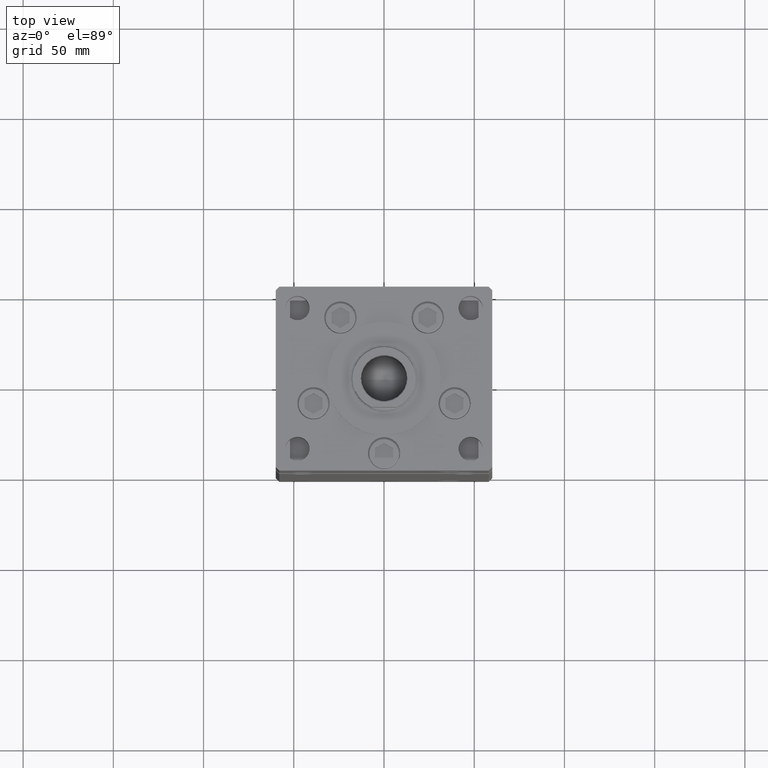
[diagram: clean part render]
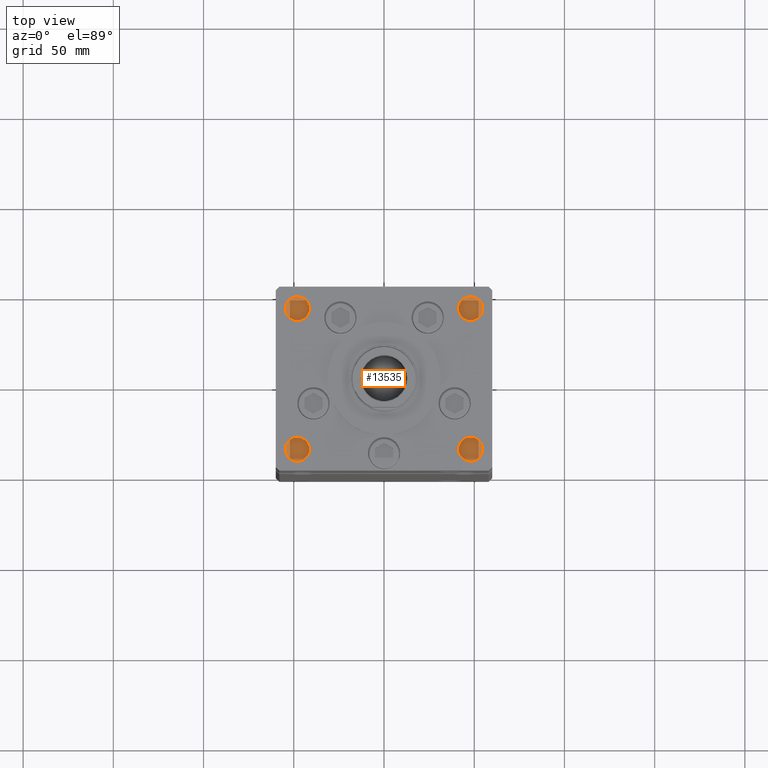
[diagram: same view with one face highlighted and labeled with its STEP entity id]
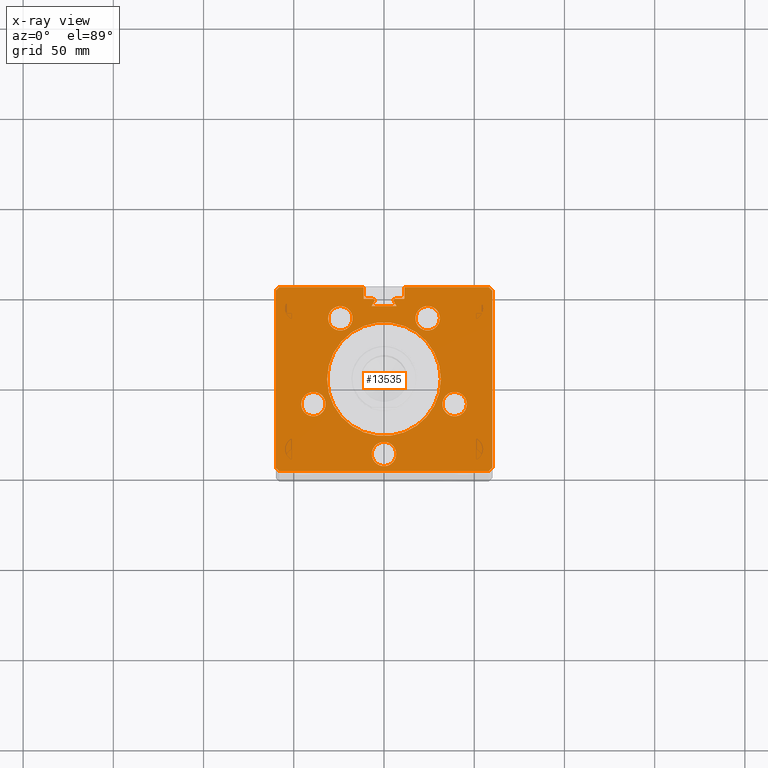
[diagram: x-ray of the same camera — body ghosted, the highlighted face saturated]
A machine part, top view. The second image highlights one B-rep face of the part: STEP entity #13535.
The next image is the same camera in x-ray: the body ghosted, the highlighted face saturated — about 0% of this face is hidden behind the body in this view.
In plain terms, the highlighted planar face has unit normal (0, 0, -1).
Its self-contained STEP definition (entity closure, byte-faithful):
#271 = CIRCLE ( 'NONE', #1985, 0.9333333333340008142 ) ;
#472 = DIRECTION ( 'NONE',  ( 0.000000000000000000, 0.000000000000000000, 1.000000000000000000 ) ) ;
#587 = DIRECTION ( 'NONE',  ( -1.000000000000000000, 0.000000000000000000, 0.000000000000000000 ) ) ;
#643 = CIRCLE ( 'NONE', #15227, 31.50000000000000000 ) ;
#818 = CARTESIAN_POINT ( 'NONE',  ( -24.19288941894912881, 33.71875000000000000, 318.5000000000000000 ) ) ;
#921 = VECTOR ( 'NONE', #47172, 1000.000000000000000 ) ;
#943 = EDGE_CURVE ( 'NONE', #37260, #21744, #26004, .T. ) ;
#968 = CARTESIAN_POINT ( 'NONE',  ( -57.99999999999999289, 51.00000000000000711, 318.5000000000000000 ) ) ;
#1206 = CIRCLE ( 'NONE', #27736, 6.749999999999999112 ) ;
#1499 = CARTESIAN_POINT ( 'NONE',  ( 2.541142108230757874E-15, -41.50000000000000000, 318.5000000000000000 ) ) ;
#1500 = DIRECTION ( 'NONE',  ( 0.000000000000000000, 0.000000000000000000, 1.000000000000000000 ) ) ;
#1764 = CARTESIAN_POINT ( 'NONE',  ( 0.000000000000000000, 40.49999999999987210, 318.5000000000000000 ) ) ;
#1843 = DIRECTION ( 'NONE',  ( 1.000000000000000000, 0.000000000000000000, 0.000000000000000000 ) ) ;
#1952 = CARTESIAN_POINT ( 'NONE',  ( 45.87657522565562829, -13.83333333333334103, 318.5000000000000000 ) ) ;
#1985 = AXIS2_PLACEMENT_3D ( 'NONE', #45870, #18233, #29802 ) ;
#2063 = DIRECTION ( 'NONE',  ( 0.000000000000000000, 0.000000000000000000, -1.000000000000000000 ) ) ;
#2273 = DIRECTION ( 'NONE',  ( -1.000000000000000000, 0.000000000000000000, 0.000000000000000000 ) ) ;
#2300 = CARTESIAN_POINT ( 'NONE',  ( -17.44288941894912881, 33.71875000000000000, 318.5000000000000000 ) ) ;
#2596 = DIRECTION ( 'NONE',  ( 1.000000000000000000, 0.000000000000000000, 0.000000000000000000 ) ) ;
#2852 = VERTEX_POINT ( 'NONE', #18834 ) ;
#2902 = AXIS2_PLACEMENT_3D ( 'NONE', #43939, #22776, #3468 ) ;
#3245 = DIRECTION ( 'NONE',  ( 0.000000000000000000, 0.000000000000000000, 1.000000000000000000 ) ) ;
#3468 = DIRECTION ( 'NONE',  ( 1.000000000000000000, 0.000000000000000000, 0.000000000000000000 ) ) ;
#3974 = DIRECTION ( 'NONE',  ( 1.000000000000000000, 0.000000000000000000, 0.000000000000000000 ) ) ;
#4089 = LINE ( 'NONE', #48314, #36379 ) ;
#4100 = CARTESIAN_POINT ( 'NONE',  ( 57.99999999999999289, 51.00000000000000711, 318.5000000000000000 ) ) ;
#4132 = CIRCLE ( 'NONE', #35786, 6.749999999999999112 ) ;
#4183 = ORIENTED_EDGE ( 'NONE', *, *, #19803, .F. ) ;
#4267 = VERTEX_POINT ( 'NONE', #39614 ) ;
#4610 = VERTEX_POINT ( 'NONE', #39232 ) ;
#4684 = VERTEX_POINT ( 'NONE', #16180 ) ;
#4783 = DIRECTION ( 'NONE',  ( -0.7071067811865474617, -0.7071067811865474617, 0.000000000000000000 ) ) ;
#4856 = VECTOR ( 'NONE', #2273, 1000.000000000000000 ) ;
#4899 = ORIENTED_EDGE ( 'NONE', *, *, #32314, .F. ) ;
#5139 = EDGE_CURVE ( 'NONE', #44314, #11537, #34294, .T. ) ;
#5377 = CARTESIAN_POINT ( 'NONE',  ( -45.87657522565562829, -13.83333333333334636, 318.5000000000000000 ) ) ;
#5430 = EDGE_CURVE ( 'NONE', #15953, #10829, #17365, .T. ) ;
#5529 = CIRCLE ( 'NONE', #32053, 0.9333333333340008142 ) ;
#5603 = DIRECTION ( 'NONE',  ( 0.000000000000000000, 0.000000000000000000, 1.000000000000000000 ) ) ;
#5671 = ORIENTED_EDGE ( 'NONE', *, *, #15762, .F. ) ;
#6312 = DIRECTION ( 'NONE',  ( 0.000000000000000000, 0.000000000000000000, 1.000000000000000000 ) ) ;
#6645 = CIRCLE ( 'NONE', #16056, 6.749999999999999112 ) ;
#7073 = CARTESIAN_POINT ( 'NONE',  ( 6.183333333333997928, 44.50000000000000711, 318.5000000000000000 ) ) ;
#7468 = EDGE_CURVE ( 'NONE', #18924, #43383, #39470, .T. ) ;
#8325 = DIRECTION ( 'NONE',  ( 1.000000000000000000, 0.000000000000000000, 0.000000000000000000 ) ) ;
#8912 = DIRECTION ( 'NONE',  ( 0.4999999999999985012, -0.8660254037844393737, 0.000000000000000000 ) ) ;
#8997 = CARTESIAN_POINT ( 'NONE',  ( -32.37657522565562829, -13.83333333333334636, 318.5000000000000000 ) ) ;
#9118 = VERTEX_POINT ( 'NONE', #5377 ) ;
#9163 = PLANE ( 'NONE',  #14002 ) ;
#9293 = DIRECTION ( 'NONE',  ( 0.000000000000000000, 0.000000000000000000, 1.000000000000000000 ) ) ;
#9420 = CARTESIAN_POINT ( 'NONE',  ( 11.24999999999999822, 0.000000000000000000, 318.5000000000000000 ) ) ;
#9554 = EDGE_LOOP ( 'NONE', ( #22213, #12831 ) ) ;
#9953 = EDGE_LOOP ( 'NONE', ( #29011, #47248 ) ) ;
#10340 = DIRECTION ( 'NONE',  ( 1.000000000000000000, 0.000000000000000000, 0.000000000000000000 ) ) ;
#10678 = AXIS2_PLACEMENT_3D ( 'NONE', #39940, #3245, #30857 ) ;
#10829 = VERTEX_POINT ( 'NONE', #35380 ) ;
#10921 = CARTESIAN_POINT ( 'NONE',  ( -11.24999999999999822, 51.00000000000000711, 318.5000000000000000 ) ) ;
#11189 = ORIENTED_EDGE ( 'NONE', *, *, #34710, .T. ) ;
#11537 = VERTEX_POINT ( 'NONE', #11859 ) ;
#11586 = DIRECTION ( 'NONE',  ( 1.000000000000000000, 0.000000000000000000, 0.000000000000000000 ) ) ;
#11603 = LINE ( 'NONE', #23661, #46843 ) ;
#11613 = VECTOR ( 'NONE', #8912, 1000.000000000000114 ) ;
#11682 = EDGE_CURVE ( 'NONE', #23721, #22192, #271, .T. ) ;
#11859 = CARTESIAN_POINT ( 'NONE',  ( -59.99999999999998579, -48.99999999999998579, 318.5000000000000000 ) ) ;
#12122 = LINE ( 'NONE', #4100, #41546 ) ;
#12352 = CARTESIAN_POINT ( 'NONE',  ( 0.000000000000000000, 0.000000000000000000, 318.5000000000000000 ) ) ;
#12831 = ORIENTED_EDGE ( 'NONE', *, *, #52252, .F. ) ;
#12857 = ORIENTED_EDGE ( 'NONE', *, *, #34160, .T. ) ;
#12873 = DIRECTION ( 'NONE',  ( 0.000000000000000000, 0.000000000000000000, 1.000000000000000000 ) ) ;
#12978 = ORIENTED_EDGE ( 'NONE', *, *, #33985, .T. ) ;
#13307 = DIRECTION ( 'NONE',  ( -1.000000000000000000, 0.000000000000000000, 0.000000000000000000 ) ) ;
#13375 = ORIENTED_EDGE ( 'NONE', *, *, #33612, .T. ) ;
#13535 = ADVANCED_FACE ( 'NONE', ( #23140, #22077, #30302, #34322, #46645, #42358, #38071 ), #9163, .F. ) ;
#13612 = AXIS2_PLACEMENT_3D ( 'NONE', #25627, #1500, #10340 ) ;
#13976 = ORIENTED_EDGE ( 'NONE', *, *, #5430, .F. ) ;
#14002 = AXIS2_PLACEMENT_3D ( 'NONE', #25755, #22246, #46378 ) ;
#14159 = CARTESIAN_POINT ( 'NONE',  ( -39.12657522565562829, -13.83333333333334636, 318.5000000000000000 ) ) ;
#14409 = LINE ( 'NONE', #10921, #25119 ) ;
#15227 = AXIS2_PLACEMENT_3D ( 'NONE', #12352, #24679, #32984 ) ;
#15246 = ORIENTED_EDGE ( 'NONE', *, *, #42991, .F. ) ;
#15519 = EDGE_CURVE ( 'NONE', #9118, #20798, #45753, .T. ) ;
#15762 = EDGE_CURVE ( 'NONE', #40705, #15953, #18887, .T. ) ;
#15892 = DIRECTION ( 'NONE',  ( 0.7071067811865500152, -0.7071067811865451302, 0.000000000000000000 ) ) ;
#15953 = VERTEX_POINT ( 'NONE', #30837 ) ;
#16056 = AXIS2_PLACEMENT_3D ( 'NONE', #21939, #5603, #1843 ) ;
#16180 = CARTESIAN_POINT ( 'NONE',  ( 6.876153656360465050, 40.49999999999987210, 318.5000000000000000 ) ) ;
#16379 = AXIS2_PLACEMENT_3D ( 'NONE', #30701, #6312, #11586 ) ;
#16558 = CIRCLE ( 'NONE', #23398, 6.749999999999999112 ) ;
#16868 = ORIENTED_EDGE ( 'NONE', *, *, #42197, .T. ) ;
#17017 = DIRECTION ( 'NONE',  ( 0.000000000000000000, 0.000000000000000000, -1.000000000000000000 ) ) ;
#17162 = CARTESIAN_POINT ( 'NONE',  ( -60.00000000000001421, 49.00000000000000000, 318.5000000000000000 ) ) ;
#17288 = EDGE_CURVE ( 'NONE', #2852, #17461, #20947, .T. ) ;
#17365 = LINE ( 'NONE', #41480, #31754 ) ;
#17403 = VECTOR ( 'NONE', #32445, 1000.000000000000114 ) ;
#17461 = VERTEX_POINT ( 'NONE', #34987 ) ;
#17711 = EDGE_CURVE ( 'NONE', #4610, #4267, #4089, .T. ) ;
#17745 = LINE ( 'NONE', #34612, #20782 ) ;
#18164 = VERTEX_POINT ( 'NONE', #2300 ) ;
#18233 = DIRECTION ( 'NONE',  ( 0.000000000000000000, 0.000000000000000000, -1.000000000000000000 ) ) ;
#18358 = DIRECTION ( 'NONE',  ( 1.000000000000000000, 0.000000000000000000, 0.000000000000000000 ) ) ;
#18601 = EDGE_CURVE ( 'NONE', #50510, #40705, #12122, .T. ) ;
#18793 = CARTESIAN_POINT ( 'NONE',  ( 5.375042956467942723, 43.09999999999899956, 318.5000000000000000 ) ) ;
#18834 = CARTESIAN_POINT ( 'NONE',  ( -6.749999999999996447, -41.50000000000000000, 318.5000000000000000 ) ) ;
#18887 = LINE ( 'NONE', #27217, #41464 ) ;
#18924 = VERTEX_POINT ( 'NONE', #37575 ) ;
#19100 = AXIS2_PLACEMENT_3D ( 'NONE', #40433, #24634, #24894 ) ;
#19147 = EDGE_CURVE ( 'NONE', #18164, #33308, #31211, .T. ) ;
#19447 = LINE ( 'NONE', #44388, #43193 ) ;
#19803 = EDGE_CURVE ( 'NONE', #23061, #41253, #19447, .T. ) ;
#20095 = CARTESIAN_POINT ( 'NONE',  ( -22.69412966890515193, 13.10246187336661094, 318.5000000000000000 ) ) ;
#20106 = AXIS2_PLACEMENT_3D ( 'NONE', #1499, #9293, #18358 ) ;
#20782 = VECTOR ( 'NONE', #42393, 1000.000000000000000 ) ;
#20798 = VERTEX_POINT ( 'NONE', #8997 ) ;
#20947 = CIRCLE ( 'NONE', #20106, 6.749999999999999112 ) ;
#21235 = LINE ( 'NONE', #49668, #26922 ) ;
#21282 = DIRECTION ( 'NONE',  ( 1.000000000000000000, 0.000000000000000000, 0.000000000000000000 ) ) ;
#21289 = CIRCLE ( 'NONE', #13612, 6.749999999999999112 ) ;
#21744 = VERTEX_POINT ( 'NONE', #30030 ) ;
#21939 = CARTESIAN_POINT ( 'NONE',  ( -39.12657522565562829, -13.83333333333334636, 318.5000000000000000 ) ) ;
#21947 = CARTESIAN_POINT ( 'NONE',  ( -57.99999999999999289, 51.00000000000000711, 318.5000000000000000 ) ) ;
#21952 = CARTESIAN_POINT ( 'NONE',  ( 32.37657522565562829, -13.83333333333334103, 318.5000000000000000 ) ) ;
#22077 = FACE_BOUND ( 'NONE', #26205, .T. ) ;
#22192 = VERTEX_POINT ( 'NONE', #40642 ) ;
#22213 = ORIENTED_EDGE ( 'NONE', *, *, #35120, .F. ) ;
#22246 = DIRECTION ( 'NONE',  ( 0.000000000000000000, 0.000000000000000000, -1.000000000000000000 ) ) ;
#22554 = CIRCLE ( 'NONE', #2902, 6.749999999999999112 ) ;
#22776 = DIRECTION ( 'NONE',  ( 0.000000000000000000, 0.000000000000000000, 1.000000000000000000 ) ) ;
#23061 = VERTEX_POINT ( 'NONE', #968 ) ;
#23140 = FACE_BOUND ( 'NONE', #9953, .T. ) ;
#23178 = EDGE_LOOP ( 'NONE', ( #32583, #16868, #4183, #12857, #44163, #51336, #11189, #13976, #5671, #52284, #29220, #37953, #47607, #15246, #13375, #33151, #12978, #40995, #42841 ) ) ;
#23398 = AXIS2_PLACEMENT_3D ( 'NONE', #24063, #472, #3974 ) ;
#23661 = CARTESIAN_POINT ( 'NONE',  ( -59.99999999999998579, -48.99999999999998579, 318.5000000000000000 ) ) ;
#23721 = VERTEX_POINT ( 'NONE', #29400 ) ;
#24037 = EDGE_CURVE ( 'NONE', #4610, #23721, #51007, .T. ) ;
#24063 = CARTESIAN_POINT ( 'NONE',  ( 24.19288941894912170, 33.71875000000000000, 318.5000000000000000 ) ) ;
#24634 = DIRECTION ( 'NONE',  ( -0.000000000000000000, 0.000000000000000000, 1.000000000000000000 ) ) ;
#24679 = DIRECTION ( 'NONE',  ( -0.000000000000000000, 0.000000000000000000, 1.000000000000000000 ) ) ;
#24776 = EDGE_CURVE ( 'NONE', #4684, #43241, #30175, .T. ) ;
#24894 = DIRECTION ( 'NONE',  ( 1.000000000000000000, 0.000000000000000000, 0.000000000000000000 ) ) ;
#25119 = VECTOR ( 'NONE', #27272, 1000.000000000000000 ) ;
#25251 = LINE ( 'NONE', #33296, #11613 ) ;
#25627 = CARTESIAN_POINT ( 'NONE',  ( 2.541142108230757874E-15, -41.50000000000000000, 318.5000000000000000 ) ) ;
#25691 = DIRECTION ( 'NONE',  ( 0.000000000000000000, 0.000000000000000000, 1.000000000000000000 ) ) ;
#25755 = CARTESIAN_POINT ( 'NONE',  ( 0.000000000000000000, 0.000000000000000000, 318.5000000000000000 ) ) ;
#25956 = CARTESIAN_POINT ( 'NONE',  ( 11.24999999999999112, 51.00000000000000711, 318.5000000000000000 ) ) ;
#26004 = LINE ( 'NONE', #9420, #921 ) ;
#26205 = EDGE_LOOP ( 'NONE', ( #4899, #27232 ) ) ;
#26914 = CARTESIAN_POINT ( 'NONE',  ( 30.94288941894911815, 33.71875000000000000, 318.5000000000000000 ) ) ;
#26922 = VECTOR ( 'NONE', #29034, 1000.000000000000000 ) ;
#27094 = CARTESIAN_POINT ( 'NONE',  ( 60.00000000000001421, 49.00000000000000000, 318.5000000000000000 ) ) ;
#27217 = CARTESIAN_POINT ( 'NONE',  ( 60.00000000000001421, 49.00000000000000000, 318.5000000000000000 ) ) ;
#27232 = ORIENTED_EDGE ( 'NONE', *, *, #17288, .F. ) ;
#27272 = DIRECTION ( 'NONE',  ( 1.000000000000000000, 0.000000000000000000, 0.000000000000000000 ) ) ;
#27578 = CARTESIAN_POINT ( 'NONE',  ( -6.876153656360465050, 40.49999999999987210, 318.5000000000000000 ) ) ;
#27692 = DIRECTION ( 'NONE',  ( 0.7071067811865474617, -0.7071067811865474617, 0.000000000000000000 ) ) ;
#27736 = AXIS2_PLACEMENT_3D ( 'NONE', #818, #12873, #52838 ) ;
#28492 = ORIENTED_EDGE ( 'NONE', *, *, #37614, .F. ) ;
#28692 = CARTESIAN_POINT ( 'NONE',  ( 39.12657522565562829, -13.83333333333334103, 318.5000000000000000 ) ) ;
#28812 = VECTOR ( 'NONE', #13307, 1000.000000000000000 ) ;
#28860 = EDGE_CURVE ( 'NONE', #50385, #50222, #643, .T. ) ;
#29011 = ORIENTED_EDGE ( 'NONE', *, *, #51555, .F. ) ;
#29034 = DIRECTION ( 'NONE',  ( 0.000000000000000000, 1.000000000000000000, 0.000000000000000000 ) ) ;
#29220 = ORIENTED_EDGE ( 'NONE', *, *, #39215, .F. ) ;
#29374 = VECTOR ( 'NONE', #46084, 1000.000000000000114 ) ;
#29400 = CARTESIAN_POINT ( 'NONE',  ( -5.249999999999996447, 43.56666666666600207, 318.5000000000000000 ) ) ;
#29802 = DIRECTION ( 'NONE',  ( 1.000000000000000000, 0.000000000000000000, 0.000000000000000000 ) ) ;
#30002 = LINE ( 'NONE', #21947, #29374 ) ;
#30030 = CARTESIAN_POINT ( 'NONE',  ( 11.24999999999999822, 44.50000000000000711, 318.5000000000000000 ) ) ;
#30175 = LINE ( 'NONE', #1764, #28812 ) ;
#30302 = FACE_BOUND ( 'NONE', #9554, .T. ) ;
#30701 = CARTESIAN_POINT ( 'NONE',  ( 24.19288941894912170, 33.71875000000000000, 318.5000000000000000 ) ) ;
#30837 = CARTESIAN_POINT ( 'NONE',  ( 59.99999999999998579, -48.99999999999998579, 318.5000000000000000 ) ) ;
#30857 = DIRECTION ( 'NONE',  ( 1.000000000000000000, 0.000000000000000000, 0.000000000000000000 ) ) ;
#31211 = CIRCLE ( 'NONE', #10678, 6.749999999999999112 ) ;
#31730 = CARTESIAN_POINT ( 'NONE',  ( -57.99999999999997868, -50.99999999999999289, 318.5000000000000000 ) ) ;
#31754 = VECTOR ( 'NONE', #4783, 1000.000000000000114 ) ;
#32053 = AXIS2_PLACEMENT_3D ( 'NONE', #34760, #2063, #2596 ) ;
#32314 = EDGE_CURVE ( 'NONE', #17461, #2852, #21289, .T. ) ;
#32445 = DIRECTION ( 'NONE',  ( 0.4999999999999985012, 0.8660254037844393737, 0.000000000000000000 ) ) ;
#32555 = ORIENTED_EDGE ( 'NONE', *, *, #19147, .F. ) ;
#32583 = ORIENTED_EDGE ( 'NONE', *, *, #17711, .T. ) ;
#32984 = DIRECTION ( 'NONE',  ( 1.000000000000000000, 0.000000000000000000, 0.000000000000000000 ) ) ;
#33151 = ORIENTED_EDGE ( 'NONE', *, *, #24776, .T. ) ;
#33296 = CARTESIAN_POINT ( 'NONE',  ( 22.69412966890515193, 13.10246187336661094, 318.5000000000000000 ) ) ;
#33308 = VERTEX_POINT ( 'NONE', #41386 ) ;
#33612 = EDGE_CURVE ( 'NONE', #42373, #4684, #25251, .T. ) ;
#33772 = DIRECTION ( 'NONE',  ( 2.832201593431522219E-16, -1.000000000000000000, 0.000000000000000000 ) ) ;
#33888 = AXIS2_PLACEMENT_3D ( 'NONE', #36586, #17017, #21282 ) ;
#33985 = EDGE_CURVE ( 'NONE', #43241, #22192, #52820, .T. ) ;
#34160 = EDGE_CURVE ( 'NONE', #23061, #44314, #30002, .T. ) ;
#34294 = LINE ( 'NONE', #17162, #41159 ) ;
#34317 = EDGE_CURVE ( 'NONE', #43383, #18924, #16558, .T. ) ;
#34322 = FACE_BOUND ( 'NONE', #43280, .T. ) ;
#34612 = CARTESIAN_POINT ( 'NONE',  ( -57.99999999999997868, -50.99999999999999289, 318.5000000000000000 ) ) ;
#34710 = EDGE_CURVE ( 'NONE', #51079, #10829, #17745, .T. ) ;
#34760 = CARTESIAN_POINT ( 'NONE',  ( 6.183333333333997928, 43.56666666666600207, 318.5000000000000000 ) ) ;
#34987 = CARTESIAN_POINT ( 'NONE',  ( 6.750000000000001776, -41.50000000000000000, 318.5000000000000000 ) ) ;
#35120 = EDGE_CURVE ( 'NONE', #36774, #52278, #22554, .T. ) ;
#35380 = CARTESIAN_POINT ( 'NONE',  ( 57.99999999999997868, -50.99999999999999289, 318.5000000000000000 ) ) ;
#35596 = ORIENTED_EDGE ( 'NONE', *, *, #7468, .F. ) ;
#35786 = AXIS2_PLACEMENT_3D ( 'NONE', #28692, #45041, #8325 ) ;
#36379 = VECTOR ( 'NONE', #587, 1000.000000000000000 ) ;
#36586 = CARTESIAN_POINT ( 'NONE',  ( -6.183333333333997928, 43.56666666666600207, 318.5000000000000000 ) ) ;
#36774 = VERTEX_POINT ( 'NONE', #1952 ) ;
#36930 = ORIENTED_EDGE ( 'NONE', *, *, #34317, .F. ) ;
#37260 = VERTEX_POINT ( 'NONE', #25956 ) ;
#37575 = CARTESIAN_POINT ( 'NONE',  ( 17.44288941894912170, 33.71875000000000000, 318.5000000000000000 ) ) ;
#37614 = EDGE_CURVE ( 'NONE', #33308, #18164, #1206, .T. ) ;
#37746 = DIRECTION ( 'NONE',  ( 1.000000000000000000, 0.000000000000000000, 0.000000000000000000 ) ) ;
#37953 = ORIENTED_EDGE ( 'NONE', *, *, #943, .T. ) ;
#38071 = FACE_BOUND ( 'NONE', #47063, .T. ) ;
#38569 = CARTESIAN_POINT ( 'NONE',  ( -60.00000000000001421, 49.00000000000000000, 318.5000000000000000 ) ) ;
#38734 = ORIENTED_EDGE ( 'NONE', *, *, #28860, .F. ) ;
#38974 = CARTESIAN_POINT ( 'NONE',  ( 0.000000000000000000, 44.50000000000000711, 318.5000000000000000 ) ) ;
#39215 = EDGE_CURVE ( 'NONE', #37260, #50510, #14409, .T. ) ;
#39232 = CARTESIAN_POINT ( 'NONE',  ( -6.183333333333997928, 44.50000000000000711, 318.5000000000000000 ) ) ;
#39470 = CIRCLE ( 'NONE', #16379, 6.749999999999999112 ) ;
#39614 = CARTESIAN_POINT ( 'NONE',  ( -11.24999999999999822, 44.50000000000000711, 318.5000000000000000 ) ) ;
#39940 = CARTESIAN_POINT ( 'NONE',  ( -24.19288941894912881, 33.71875000000000000, 318.5000000000000000 ) ) ;
#40118 = EDGE_CURVE ( 'NONE', #50222, #50385, #45660, .T. ) ;
#40344 = DIRECTION ( 'NONE',  ( 1.000000000000000000, 0.000000000000000000, 0.000000000000000000 ) ) ;
#40433 = CARTESIAN_POINT ( 'NONE',  ( 0.000000000000000000, 0.000000000000000000, 318.5000000000000000 ) ) ;
#40642 = CARTESIAN_POINT ( 'NONE',  ( -5.375042956467942723, 43.09999999999899956, 318.5000000000000000 ) ) ;
#40705 = VERTEX_POINT ( 'NONE', #27094 ) ;
#40995 = ORIENTED_EDGE ( 'NONE', *, *, #11682, .F. ) ;
#41159 = VECTOR ( 'NONE', #33772, 1000.000000000000000 ) ;
#41253 = VERTEX_POINT ( 'NONE', #43782 ) ;
#41386 = CARTESIAN_POINT ( 'NONE',  ( -30.94288941894912526, 33.71875000000000000, 318.5000000000000000 ) ) ;
#41464 = VECTOR ( 'NONE', #47046, 1000.000000000000000 ) ;
#41480 = CARTESIAN_POINT ( 'NONE',  ( 59.99999999999998579, -48.99999999999998579, 318.5000000000000000 ) ) ;
#41546 = VECTOR ( 'NONE', #15892, 1000.000000000000114 ) ;
#42197 = EDGE_CURVE ( 'NONE', #4267, #41253, #21235, .T. ) ;
#42358 = FACE_OUTER_BOUND ( 'NONE', #23178, .T. ) ;
#42373 = VERTEX_POINT ( 'NONE', #18793 ) ;
#42393 = DIRECTION ( 'NONE',  ( 1.000000000000000000, 0.000000000000000000, 0.000000000000000000 ) ) ;
#42774 = EDGE_LOOP ( 'NONE', ( #32555, #28492 ) ) ;
#42841 = ORIENTED_EDGE ( 'NONE', *, *, #24037, .F. ) ;
#42991 = EDGE_CURVE ( 'NONE', #42373, #53033, #5529, .T. ) ;
#43193 = VECTOR ( 'NONE', #40344, 1000.000000000000000 ) ;
#43241 = VERTEX_POINT ( 'NONE', #27578 ) ;
#43280 = EDGE_LOOP ( 'NONE', ( #36930, #35596 ) ) ;
#43383 = VERTEX_POINT ( 'NONE', #26914 ) ;
#43721 = CARTESIAN_POINT ( 'NONE',  ( 31.50000000000000000, 3.857637417314162689E-15, 318.5000000000000000 ) ) ;
#43782 = CARTESIAN_POINT ( 'NONE',  ( -11.24999999999999822, 51.00000000000000711, 318.5000000000000000 ) ) ;
#43939 = CARTESIAN_POINT ( 'NONE',  ( 39.12657522565562829, -13.83333333333334103, 318.5000000000000000 ) ) ;
#44163 = ORIENTED_EDGE ( 'NONE', *, *, #5139, .T. ) ;
#44314 = VERTEX_POINT ( 'NONE', #38569 ) ;
#44388 = CARTESIAN_POINT ( 'NONE',  ( -11.24999999999999822, 51.00000000000000711, 318.5000000000000000 ) ) ;
#45041 = DIRECTION ( 'NONE',  ( 0.000000000000000000, 0.000000000000000000, 1.000000000000000000 ) ) ;
#45303 = ORIENTED_EDGE ( 'NONE', *, *, #40118, .F. ) ;
#45660 = CIRCLE ( 'NONE', #19100, 31.50000000000000000 ) ;
#45753 = CIRCLE ( 'NONE', #48326, 6.749999999999999112 ) ;
#45870 = CARTESIAN_POINT ( 'NONE',  ( -6.183333333333997928, 43.56666666666600207, 318.5000000000000000 ) ) ;
#46084 = DIRECTION ( 'NONE',  ( -0.7071067811865500152, -0.7071067811865451302, 0.000000000000000000 ) ) ;
#46378 = DIRECTION ( 'NONE',  ( -1.000000000000000000, 0.000000000000000000, -0.000000000000000000 ) ) ;
#46612 = CARTESIAN_POINT ( 'NONE',  ( 57.99999999999999289, 51.00000000000000711, 318.5000000000000000 ) ) ;
#46645 = FACE_BOUND ( 'NONE', #42774, .T. ) ;
#46843 = VECTOR ( 'NONE', #27692, 1000.000000000000114 ) ;
#47046 = DIRECTION ( 'NONE',  ( -2.832201593431522219E-16, -1.000000000000000000, 0.000000000000000000 ) ) ;
#47063 = EDGE_LOOP ( 'NONE', ( #38734, #45303 ) ) ;
#47148 = CARTESIAN_POINT ( 'NONE',  ( -31.50000000000000000, 0.000000000000000000, 318.5000000000000000 ) ) ;
#47172 = DIRECTION ( 'NONE',  ( -0.000000000000000000, -1.000000000000000000, 0.000000000000000000 ) ) ;
#47248 = ORIENTED_EDGE ( 'NONE', *, *, #15519, .F. ) ;
#47607 = ORIENTED_EDGE ( 'NONE', *, *, #48377, .T. ) ;
#48314 = CARTESIAN_POINT ( 'NONE',  ( 0.000000000000000000, 44.50000000000000711, 318.5000000000000000 ) ) ;
#48326 = AXIS2_PLACEMENT_3D ( 'NONE', #14159, #25691, #37746 ) ;
#48377 = EDGE_CURVE ( 'NONE', #21744, #53033, #50794, .T. ) ;
#49370 = EDGE_CURVE ( 'NONE', #11537, #51079, #11603, .T. ) ;
#49668 = CARTESIAN_POINT ( 'NONE',  ( -11.24999999999999822, 0.000000000000000000, 318.5000000000000000 ) ) ;
#50222 = VERTEX_POINT ( 'NONE', #43721 ) ;
#50385 = VERTEX_POINT ( 'NONE', #47148 ) ;
#50510 = VERTEX_POINT ( 'NONE', #46612 ) ;
#50794 = LINE ( 'NONE', #38974, #4856 ) ;
#51007 = CIRCLE ( 'NONE', #33888, 0.9333333333340008142 ) ;
#51079 = VERTEX_POINT ( 'NONE', #31730 ) ;
#51336 = ORIENTED_EDGE ( 'NONE', *, *, #49370, .T. ) ;
#51555 = EDGE_CURVE ( 'NONE', #20798, #9118, #6645, .T. ) ;
#52252 = EDGE_CURVE ( 'NONE', #52278, #36774, #4132, .T. ) ;
#52278 = VERTEX_POINT ( 'NONE', #21952 ) ;
#52284 = ORIENTED_EDGE ( 'NONE', *, *, #18601, .F. ) ;
#52820 = LINE ( 'NONE', #20095, #17403 ) ;
#52838 = DIRECTION ( 'NONE',  ( 1.000000000000000000, 0.000000000000000000, 0.000000000000000000 ) ) ;
#53033 = VERTEX_POINT ( 'NONE', #7073 ) ;